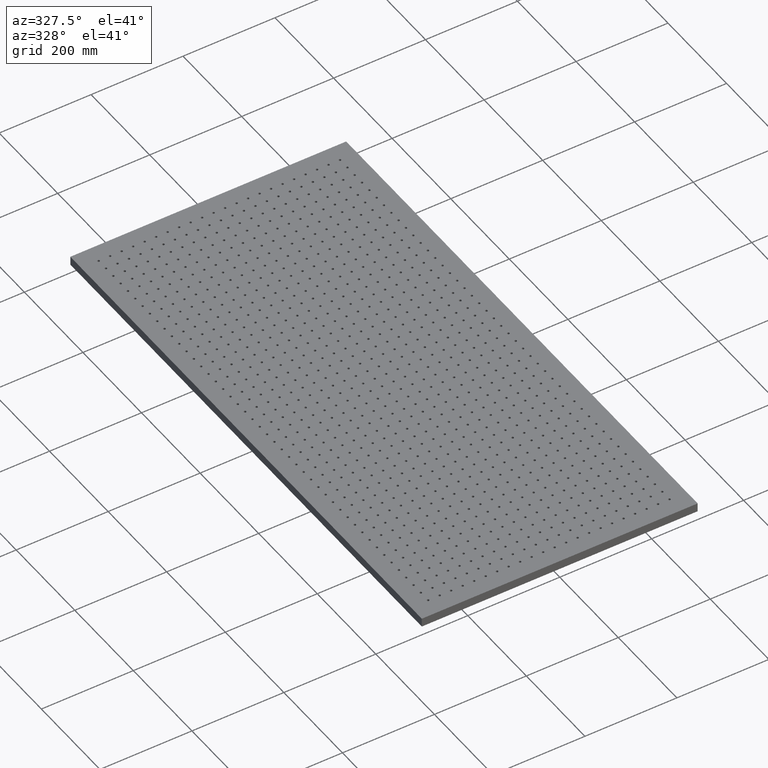
[diagram: clean part render]
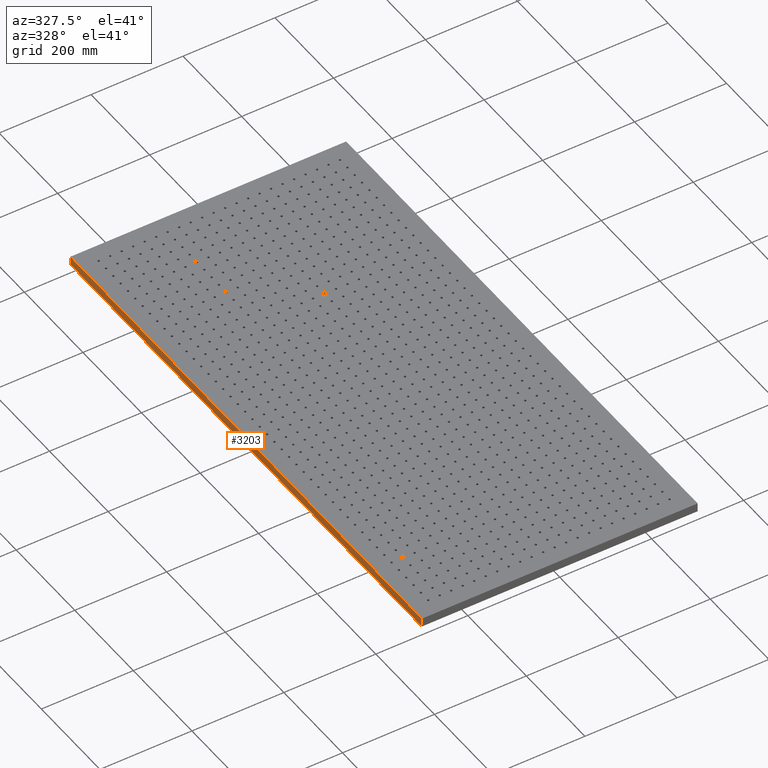
[diagram: same view with one face highlighted and labeled with its STEP entity id]
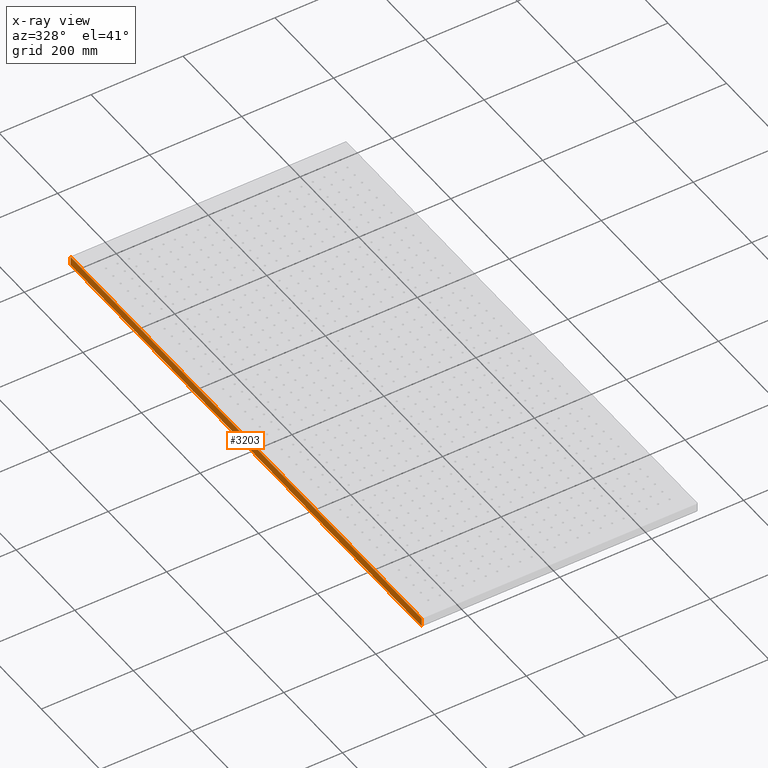
[diagram: x-ray of the same camera — body ghosted, the highlighted face saturated]
A machine part, auxiliary view. The second image highlights one B-rep face of the part: STEP entity #3203.
The next image is the same camera in x-ray: the body ghosted, the highlighted face saturated — about 0% of this face is hidden behind the body in this view.
In plain terms, the highlighted planar face has unit normal (1, 0, -0).
Its self-contained STEP definition (entity closure, byte-faithful):
#1818 = AXIS2_PLACEMENT_3D ( 'NONE', #56760, #68405, #33800 ) ;
#2647 = DIRECTION ( 'NONE',  ( 9.251858538542971600E-017, -1.000000000000000000, 0.0000000000000000000 ) ) ;
#3203 = ADVANCED_FACE ( 'NONE', ( #42926 ), #45134, .F. ) ;
#3253 = EDGE_CURVE ( 'NONE', #67581, #36968, #25728, .T. ) ;
#5442 = DIRECTION ( 'NONE',  ( -0.0000000000000000000, -0.0000000000000000000, -1.000000000000000000 ) ) ;
#8806 = VECTOR ( 'NONE', #25714, 1000.000000000000000 ) ;
#11622 = VECTOR ( 'NONE', #2647, 1000.000000000000000 ) ;
#14259 = CARTESIAN_POINT ( 'NONE',  ( -300.0000000000000600, 599.9999999999998900, 19.00000000000000000 ) ) ;
#16102 = ORIENTED_EDGE ( 'NONE', *, *, #25459, .F. ) ;
#16969 = ORIENTED_EDGE ( 'NONE', *, *, #3253, .T. ) ;
#19911 = CARTESIAN_POINT ( 'NONE',  ( -300.0000000000000600, 599.9999999999998900, 0.0000000000000000000 ) ) ;
#23632 = ORIENTED_EDGE ( 'NONE', *, *, #40824, .F. ) ;
#24182 = LINE ( 'NONE', #19911, #8806 ) ;
#24230 = EDGE_LOOP ( 'NONE', ( #56090, #23632, #16102, #16969 ) ) ;
#25459 = EDGE_CURVE ( 'NONE', #67581, #58223, #73165, .T. ) ;
#25628 = CARTESIAN_POINT ( 'NONE',  ( -299.9999999999999400, -600.0000000000001100, 0.0000000000000000000 ) ) ;
#25714 = DIRECTION ( 'NONE',  ( 9.251858538542971600E-017, -1.000000000000000000, 0.0000000000000000000 ) ) ;
#25728 = LINE ( 'NONE', #34310, #39328 ) ;
#33800 = DIRECTION ( 'NONE',  ( -9.251858538542972800E-017, 1.000000000000000000, 0.0000000000000000000 ) ) ;
#34310 = CARTESIAN_POINT ( 'NONE',  ( -300.0000000000000600, 599.9999999999998900, 19.00000000000000000 ) ) ;
#36968 = VERTEX_POINT ( 'NONE', #41120 ) ;
#38915 = CARTESIAN_POINT ( 'NONE',  ( -300.0000000000000600, 599.9999999999998900, 19.00000000000000000 ) ) ;
#39328 = VECTOR ( 'NONE', #5442, 1000.000000000000000 ) ;
#39532 = VERTEX_POINT ( 'NONE', #25628 ) ;
#40824 = EDGE_CURVE ( 'NONE', #58223, #39532, #52374, .T. ) ;
#41120 = CARTESIAN_POINT ( 'NONE',  ( -300.0000000000000600, 599.9999999999998900, 0.0000000000000000000 ) ) ;
#42926 = FACE_OUTER_BOUND ( 'NONE', #24230, .T. ) ;
#43341 = CARTESIAN_POINT ( 'NONE',  ( -299.9999999999999400, -600.0000000000001100, 19.00000000000000000 ) ) ;
#45134 = PLANE ( 'NONE',  #1818 ) ;
#50978 = DIRECTION ( 'NONE',  ( -0.0000000000000000000, -0.0000000000000000000, -1.000000000000000000 ) ) ;
#52374 = LINE ( 'NONE', #56784, #69593 ) ;
#54079 = EDGE_CURVE ( 'NONE', #36968, #39532, #24182, .T. ) ;
#56090 = ORIENTED_EDGE ( 'NONE', *, *, #54079, .T. ) ;
#56760 = CARTESIAN_POINT ( 'NONE',  ( -300.0000000000000600, 599.9999999999998900, 19.00000000000000000 ) ) ;
#56784 = CARTESIAN_POINT ( 'NONE',  ( -299.9999999999999400, -600.0000000000001100, 19.00000000000000000 ) ) ;
#58223 = VERTEX_POINT ( 'NONE', #43341 ) ;
#67581 = VERTEX_POINT ( 'NONE', #38915 ) ;
#68405 = DIRECTION ( 'NONE',  ( 1.000000000000000000, 9.251858538542972800E-017, -0.0000000000000000000 ) ) ;
#69593 = VECTOR ( 'NONE', #50978, 1000.000000000000000 ) ;
#73165 = LINE ( 'NONE', #14259, #11622 ) ;